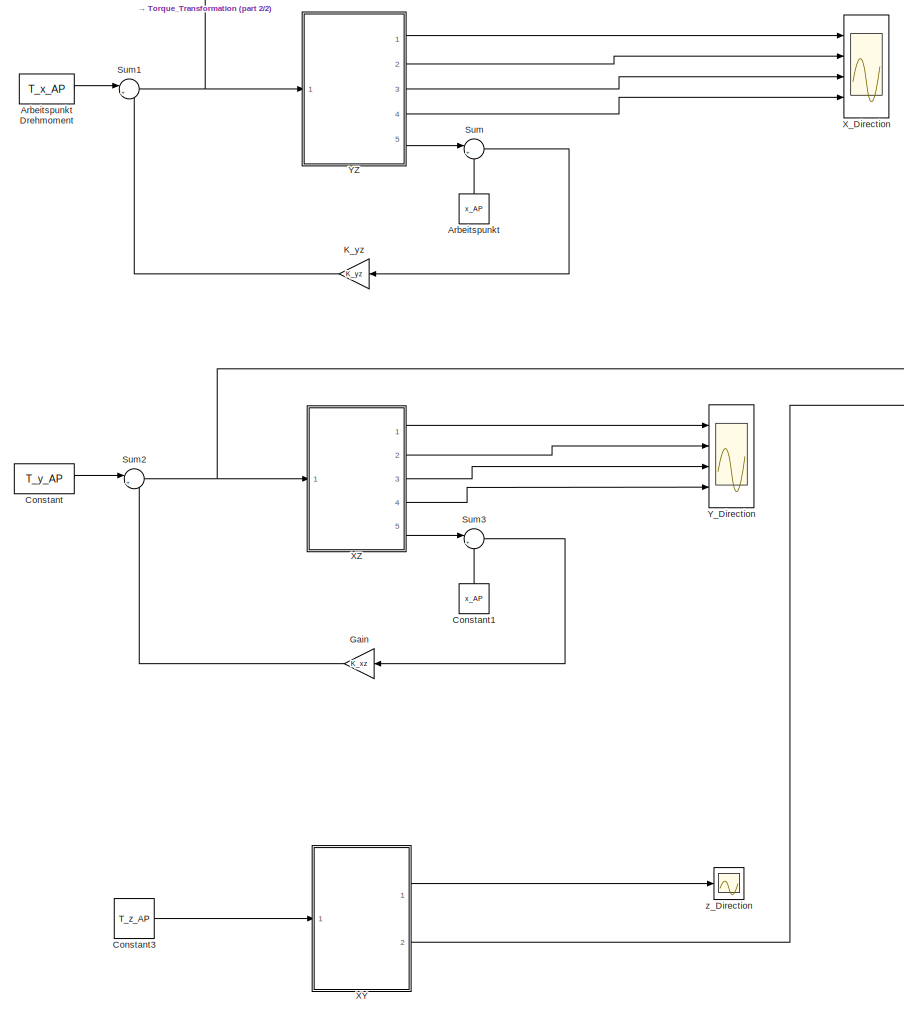
[diagram: root canvas - part 1/2, left side, full height]
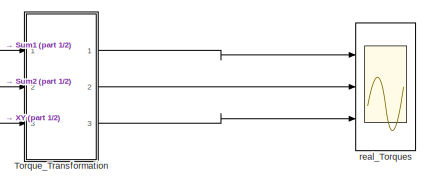
[diagram: root canvas - part 2/2, middle right region]
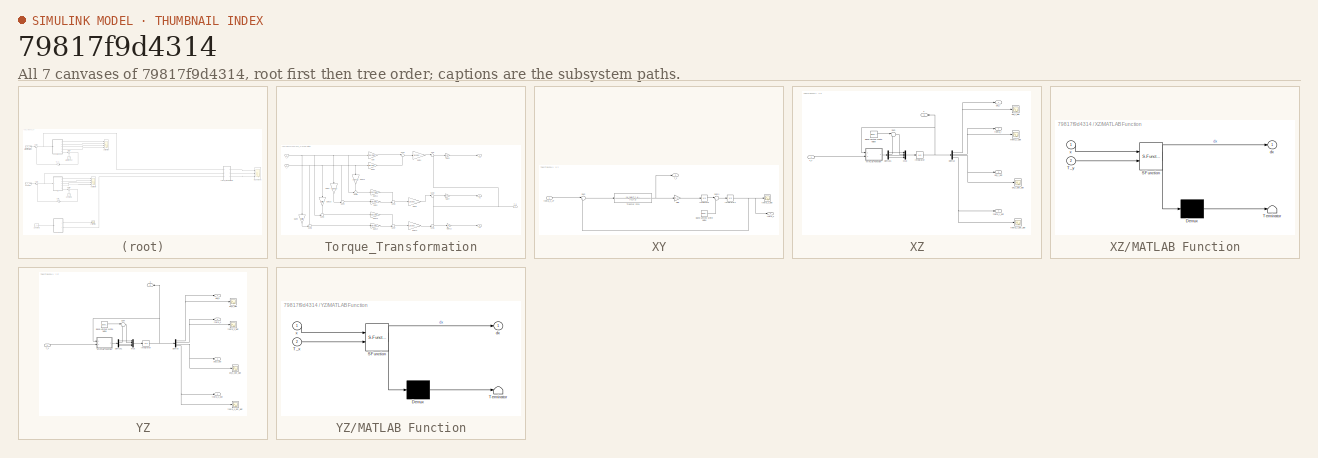
[diagram: thumbnail index - all 7 canvases of the model, root first then tree order]
MODEL slx_79817f9d4314
KIND model
CONFIG AbsTol = auto
CONFIG FixedStep = auto
CONFIG MaxStep = auto
CONFIG MinStep = auto
CONFIG RelTol = 1e-3
CONFIG SampleTimeConstraint = Unconstrained
CONFIG Solver = VariableStepAuto
CONFIG SolverMode = Auto
CONFIG SolverName = VariableStepAuto
CONFIG StartTime = 0.0
CONFIG StopTime = 10.0
BLOCK [Constant] Arbeitspunkt
  Value = x_AP
BLOCK [Constant] Arbeitspunkt Drehmoment
  Value = T_x_AP
BLOCK [Constant] Constant
  Value = T_y_AP
BLOCK [Constant] Constant1
  Value = x_AP
BLOCK [Constant] Constant3
  Value = T_z_AP
BLOCK [Gain] Gain
  Gain = K_xz
  Multiplication = Matrix(K*u) (u vector)
  OutDataTypeStr = Inherit: Inherit via internal rule
  ParamDataTypeStr = Inherit: Inherit via internal rule
  SaturateOnIntegerOverflow = off
BLOCK [Gain] K_yz
  Gain = K_yz
  Multiplication = Matrix(K*u) (u vector)
  OutDataTypeStr = Inherit: Inherit via internal rule
  ParamDataTypeStr = Inherit: Inherit via internal rule
  SaturateOnIntegerOverflow = off
BLOCK [Sum] Sum
  IconShape = round
  InputSameDT = off
  Inputs = |+-
  OutDataTypeStr = Inherit: Inherit via internal rule
  Ports = [2, 1]
  SaturateOnIntegerOverflow = off
BLOCK [Sum] Sum1
  IconShape = round
  InputSameDT = off
  Inputs = |+-
  OutDataTypeStr = Inherit: Inherit via internal rule
  Ports = [2, 1]
  SaturateOnIntegerOverflow = off
BLOCK [Sum] Sum2
  IconShape = round
  InputSameDT = off
  Inputs = |+-
  OutDataTypeStr = Inherit: Inherit via internal rule
  Ports = [2, 1]
  SaturateOnIntegerOverflow = off
BLOCK [Sum] Sum3
  IconShape = round
  InputSameDT = off
  Inputs = |+-
  OutDataTypeStr = Inherit: Inherit via internal rule
  Ports = [2, 1]
  SaturateOnIntegerOverflow = off
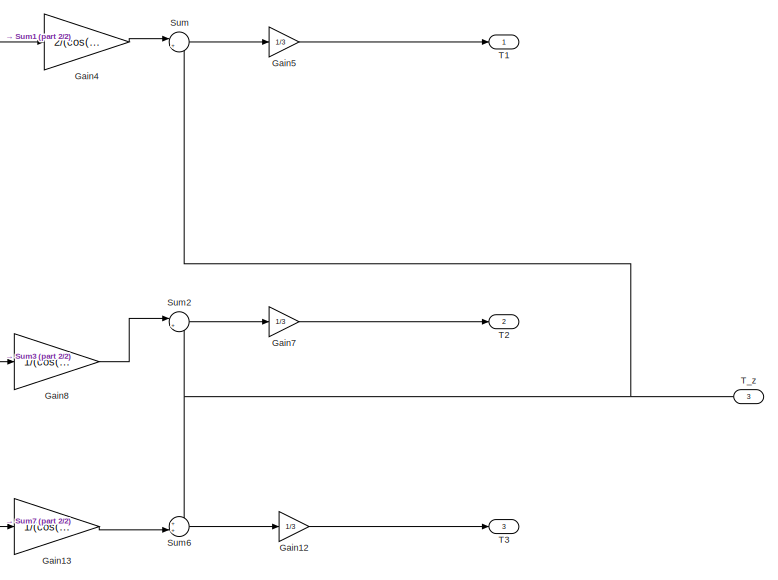
[diagram: Torque_Transformation - part 1/2, right side, full height]
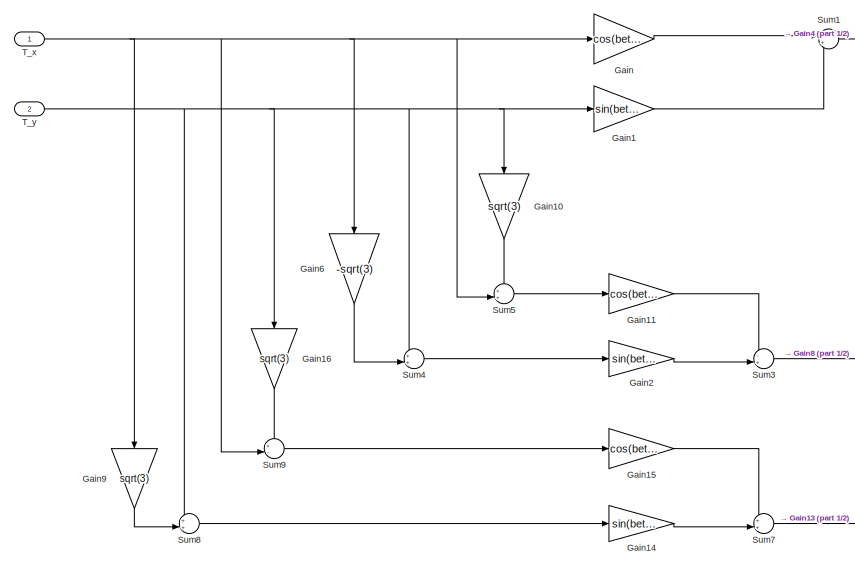
[diagram: Torque_Transformation - part 2/2, left side, full height]
BLOCK [SubSystem] Torque_Transformation
  Ports = [3, 3]
  RequestExecContextInheritance = off
  Variant = off
BLOCK [Gain] Torque_Transformation/Gain
  Gain = cos(beta)
  OutDataTypeStr = Inherit: Inherit via internal rule
  ParamDataTypeStr = Inherit: Inherit via internal rule
  SaturateOnIntegerOverflow = off
BLOCK [Gain] Torque_Transformation/Gain1
  Gain = sin(beta)
  OutDataTypeStr = Inherit: Inherit via internal rule
  ParamDataTypeStr = Inherit: Inherit via internal rule
  SaturateOnIntegerOverflow = off
BLOCK [Gain] Torque_Transformation/Gain10
  Gain = sqrt(3)
  OutDataTypeStr = Inherit: Inherit via internal rule
  ParamDataTypeStr = Inherit: Inherit via internal rule
  SaturateOnIntegerOverflow = off
BLOCK [Gain] Torque_Transformation/Gain11
  Gain = cos(beta)
  OutDataTypeStr = Inherit: Inherit via internal rule
  ParamDataTypeStr = Inherit: Inherit via internal rule
  SaturateOnIntegerOverflow = off
BLOCK [Gain] Torque_Transformation/Gain12
  Gain = 1/3
  OutDataTypeStr = Inherit: Inherit via internal rule
  ParamDataTypeStr = Inherit: Inherit via internal rule
  SaturateOnIntegerOverflow = off
BLOCK [Gain] Torque_Transformation/Gain13
  Gain = 1/(cos(alpha))
  OutDataTypeStr = Inherit: Inherit via internal rule
  ParamDataTypeStr = Inherit: Inherit via internal rule
  SaturateOnIntegerOverflow = off
BLOCK [Gain] Torque_Transformation/Gain14
  Gain = sin(beta)
  OutDataTypeStr = Inherit: Inherit via internal rule
  ParamDataTypeStr = Inherit: Inherit via internal rule
  SaturateOnIntegerOverflow = off
BLOCK [Gain] Torque_Transformation/Gain15
  Gain = cos(beta)
  OutDataTypeStr = Inherit: Inherit via internal rule
  ParamDataTypeStr = Inherit: Inherit via internal rule
  SaturateOnIntegerOverflow = off
BLOCK [Gain] Torque_Transformation/Gain16
  Gain = sqrt(3)
  OutDataTypeStr = Inherit: Inherit via internal rule
  ParamDataTypeStr = Inherit: Inherit via internal rule
  SaturateOnIntegerOverflow = off
BLOCK [Gain] Torque_Transformation/Gain2
  Gain = sin(beta)
  OutDataTypeStr = Inherit: Inherit via internal rule
  ParamDataTypeStr = Inherit: Inherit via internal rule
  SaturateOnIntegerOverflow = off
BLOCK [Gain] Torque_Transformation/Gain4
  Gain = 2/(cos(alpha))
  OutDataTypeStr = Inherit: Inherit via internal rule
  ParamDataTypeStr = Inherit: Inherit via internal rule
  SaturateOnIntegerOverflow = off
BLOCK [Gain] Torque_Transformation/Gain5
  Gain = 1/3
  OutDataTypeStr = Inherit: Inherit via internal rule
  ParamDataTypeStr = Inherit: Inherit via internal rule
  SaturateOnIntegerOverflow = off
BLOCK [Gain] Torque_Transformation/Gain6
  Gain = -sqrt(3)
  OutDataTypeStr = Inherit: Inherit via internal rule
  ParamDataTypeStr = Inherit: Inherit via internal rule
  SaturateOnIntegerOverflow = off
BLOCK [Gain] Torque_Transformation/Gain7
  Gain = 1/3
  OutDataTypeStr = Inherit: Inherit via internal rule
  ParamDataTypeStr = Inherit: Inherit via internal rule
  SaturateOnIntegerOverflow = off
BLOCK [Gain] Torque_Transformation/Gain8
  Gain = 1/(cos(alpha))
  OutDataTypeStr = Inherit: Inherit via internal rule
  ParamDataTypeStr = Inherit: Inherit via internal rule
  SaturateOnIntegerOverflow = off
BLOCK [Gain] Torque_Transformation/Gain9
  Gain = sqrt(3)
  OutDataTypeStr = Inherit: Inherit via internal rule
  ParamDataTypeStr = Inherit: Inherit via internal rule
  SaturateOnIntegerOverflow = off
BLOCK [Sum] Torque_Transformation/Sum
  IconShape = round
  InputSameDT = off
  Inputs = |++
  OutDataTypeStr = Inherit: Inherit via internal rule
  Ports = [2, 1]
  SaturateOnIntegerOverflow = off
BLOCK [Sum] Torque_Transformation/Sum1
  IconShape = round
  InputSameDT = off
  Inputs = |+-
  OutDataTypeStr = Inherit: Inherit via internal rule
  Ports = [2, 1]
  SaturateOnIntegerOverflow = off
BLOCK [Sum] Torque_Transformation/Sum2
  IconShape = round
  InputSameDT = off
  Inputs = |++
  OutDataTypeStr = Inherit: Inherit via internal rule
  Ports = [2, 1]
  SaturateOnIntegerOverflow = off
BLOCK [Sum] Torque_Transformation/Sum3
  IconShape = round
  InputSameDT = off
  Inputs = -+|
  OutDataTypeStr = Inherit: Inherit via internal rule
  Ports = [2, 1]
  SaturateOnIntegerOverflow = off
BLOCK [Sum] Torque_Transformation/Sum4
  IconShape = round
  InputSameDT = off
  Inputs = ++|
  OutDataTypeStr = Inherit: Inherit via internal rule
  Ports = [2, 1]
  SaturateOnIntegerOverflow = off
BLOCK [Sum] Torque_Transformation/Sum5
  IconShape = round
  InputSameDT = off
  Inputs = ++|
  OutDataTypeStr = Inherit: Inherit via internal rule
  Ports = [2, 1]
  SaturateOnIntegerOverflow = off
BLOCK [Sum] Torque_Transformation/Sum6
  IconShape = round
  InputSameDT = off
  Inputs = ++|
  OutDataTypeStr = Inherit: Inherit via internal rule
  Ports = [2, 1]
  SaturateOnIntegerOverflow = off
BLOCK [Sum] Torque_Transformation/Sum7
  IconShape = round
  InputSameDT = off
  Inputs = ++|
  OutDataTypeStr = Inherit: Inherit via internal rule
  Ports = [2, 1]
  SaturateOnIntegerOverflow = off
BLOCK [Sum] Torque_Transformation/Sum8
  IconShape = round
  InputSameDT = off
  Inputs = ++|
  OutDataTypeStr = Inherit: Inherit via internal rule
  Ports = [2, 1]
  SaturateOnIntegerOverflow = off
BLOCK [Sum] Torque_Transformation/Sum9
  IconShape = round
  InputSameDT = off
  Inputs = +-|
  OutDataTypeStr = Inherit: Inherit via internal rule
  Ports = [2, 1]
  SaturateOnIntegerOverflow = off
BLOCK [Outport] Torque_Transformation/T1
  IconDisplay = Port number
BLOCK [Outport] Torque_Transformation/T2
  IconDisplay = Port number
  Port = 2
BLOCK [Outport] Torque_Transformation/T3
  IconDisplay = Port number
  Port = 3
BLOCK [Inport] Torque_Transformation/T_x
  IconDisplay = Port number
BLOCK [Inport] Torque_Transformation/T_y
  IconDisplay = Port number
  Port = 2
BLOCK [Inport] Torque_Transformation/T_z
  IconDisplay = Port number
  Port = 3
BLOCK [SubSystem] XY
  Ports = [1, 2]
  RequestExecContextInheritance = off
  Variant = off
BLOCK [Reference] XY/Band-Limited White Noise  REF=simulink/Sources/Band-Limited
White Noise
  Ports = [0, 1]
  SourceBlock = simulink/Sources/Band-Limited\nWhite Noise
  SourceType = Band-Limited White Noise.
BLOCK [Gain] XY/Gain
  Gain = k_s
  OutDataTypeStr = Inherit: Inherit via internal rule
  ParamDataTypeStr = Inherit: Inherit via internal rule
  SaturateOnIntegerOverflow = off
BLOCK [Integrator] XY/Integrator
  Ports = [1, 1]
BLOCK [Integrator] XY/Integrator1
  InitialCondition = pi/32
  Ports = [1, 1]
BLOCK [Sum] XY/Sum
  IconShape = round
  InputSameDT = off
  Inputs = |+-
  OutDataTypeStr = Inherit: Inherit via internal rule
  Ports = [2, 1]
  SaturateOnIntegerOverflow = off
BLOCK [Sum] XY/Sum1
  IconShape = round
  InputSameDT = off
  Inputs = |++
  OutDataTypeStr = Inherit: Inherit via internal rule
  Ports = [2, 1]
  SaturateOnIntegerOverflow = off
BLOCK [Outport] XY/T_z
  IconDisplay = Port number
  Port = 2
BLOCK [TransferFcn] XY/Transfer Fcn1
  Denominator = [T_n 1]
  Numerator = [k_reg*T_r  k_reg]
BLOCK [Outport] XY/theta_z 
  IconDisplay = Port number
BLOCK [Inport] XY/theta_z_AP 
  IconDisplay = Port number
BLOCK [Scope] XY/theta_z_plot
  Ports = [1]
  ScopeSpecificationString = C++SS(StrPVP('SaveName','ScopeData8'))
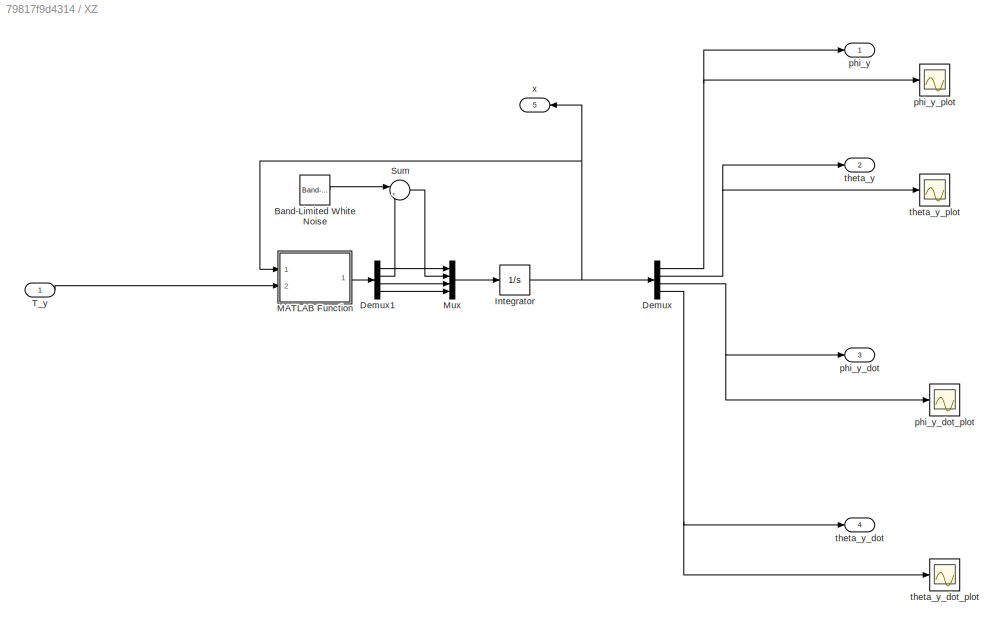
BLOCK [SubSystem] XZ
  Ports = [1, 5]
  RequestExecContextInheritance = off
  Variant = off
BLOCK [Reference] XZ/Band-Limited White Noise  REF=simulink/Sources/Band-Limited
White Noise
  Ports = [0, 1]
  SourceBlock = simulink/Sources/Band-Limited\nWhite Noise
  SourceType = Band-Limited White Noise.
BLOCK [Demux] XZ/Demux
  DisplayOption = bar
  Ports = [1, 4]
BLOCK [Demux] XZ/Demux1
  DisplayOption = bar
  Ports = [1, 4]
BLOCK [Integrator] XZ/Integrator
  InitialCondition = [0 pi/32  0 0]
  Ports = [1, 1]
BLOCK [SubSystem] XZ/MATLAB Function
  ErrorFcn = Stateflow.Translate.translate
  PermitHierarchicalResolution = ExplicitOnly
  Ports = [2, 1]
  RequestExecContextInheritance = off
  SFBlockType = MATLAB Function
  TreatAsAtomicUnit = on
  Variant = off
BLOCK [Demux] XZ/MATLAB Function/ Demux 
  Outputs = 1
  Ports = [1, 1]
BLOCK [S-Function] XZ/MATLAB Function/ SFunction 
  EnableBusSupport = on
  FunctionName = sf_sfun
  PortCounts = [2 2]
  Ports = [2, 2]
  SFunctionDeploymentMode = off
  Tag = Stateflow S-Function Planar_Full_NL_Subsystems 1
BLOCK [Terminator] XZ/MATLAB Function/ Terminator 
BLOCK [Inport] XZ/MATLAB Function/T_y
  IconDisplay = Port number
  Port = 2
BLOCK [Outport] XZ/MATLAB Function/dx
  IconDisplay = Port number
BLOCK [Inport] XZ/MATLAB Function/x
  IconDisplay = Port number
BLOCK [Mux] XZ/Mux
  DisplayOption = bar
  Ports = [4, 1]
BLOCK [Sum] XZ/Sum
  IconShape = round
  InputSameDT = off
  Inputs = |++
  OutDataTypeStr = Inherit: Inherit via internal rule
  Ports = [2, 1]
  SaturateOnIntegerOverflow = off
BLOCK [Inport] XZ/T_y 
  IconDisplay = Port number
BLOCK [Outport] XZ/phi_y
  IconDisplay = Port number
BLOCK [Outport] XZ/phi_y_dot
  IconDisplay = Port number
  Port = 3
BLOCK [Scope] XZ/phi_y_dot_plot
  Ports = [1]
  ScopeSpecificationString = C++SS(StrPVP('SaveName','ScopeData1'),StrPVP('LimitDataPoints','on'),StrPVP('DataFormat','Array'),StrPVP('Decimation','1'),StrPVP('BlockParamSampleInput','off'),StrPVP('SaveName','ScopeData4'))
BLOCK [Scope] XZ/phi_y_plot
  Ports = [1]
  ScopeSpecificationString = C++SS(StrPVP('SaveName','ScopeData2'),StrPVP('LimitDataPoints','on'),StrPVP('DataFormat','Array'),StrPVP('Decimation','1'),StrPVP('BlockParamSampleInput','off'),StrPVP('SaveName','ScopeData5'))
BLOCK [Outport] XZ/theta_y
  IconDisplay = Port number
  Port = 2
BLOCK [Outport] XZ/theta_y_dot
  IconDisplay = Port number
  Port = 4
BLOCK [Scope] XZ/theta_y_dot_plot
  Ports = [1]
  ScopeSpecificationString = C++SS(StrPVP('SaveName','ScopeData3'),StrPVP('LimitDataPoints','on'),StrPVP('DataFormat','Array'),StrPVP('Decimation','1'),StrPVP('BlockParamSampleInput','off'),StrPVP('SaveName','ScopeData6'))
BLOCK [Scope] XZ/theta_y_plot
  Ports = [1]
  ScopeSpecificationString = C++SS(StrPVP('SaveName','ScopeData'),StrPVP('LimitDataPoints','on'),StrPVP('DataFormat','Array'),StrPVP('Decimation','1'),StrPVP('BlockParamSampleInput','off'),StrPVP('SaveName','ScopeData7'))
BLOCK [Outport] XZ/x
  IconDisplay = Port number
  Port = 5
BLOCK [Scope] X_Direction
  NumInputPorts = 4
  Ports = [4]
  ScopeSpecificationString = Simulink.scopes.TimeScopeBlockCfg('CurrentConfiguration', extmgr.ConfigurationSet(extmgr.Configuration('Core','General UI',true),extmgr.Configuration('Core','Source UI',true),extmgr.Configuration('Sources','WiredSimulink',true,'DataLoggingVariableName','ScopeData9'),extmgr.Configuration('Visuals','Time Domain',true,'SerializedDisplays',{struct('MinYLimReal','-2.26532','MaxYLimReal','2.23093','YLab...<+3357ch>
BLOCK [SubSystem] YZ
  Ports = [1, 5]
  RequestExecContextInheritance = off
  Variant = off
BLOCK [Reference] YZ/Band-Limited White Noise  REF=simulink/Sources/Band-Limited
White Noise
  Ports = [0, 1]
  SourceBlock = simulink/Sources/Band-Limited\nWhite Noise
  SourceType = Band-Limited White Noise.
BLOCK [Demux] YZ/Demux
  DisplayOption = bar
  Ports = [1, 4]
BLOCK [Demux] YZ/Demux1
  DisplayOption = bar
  Ports = [1, 4]
BLOCK [Integrator] YZ/Integrator
  InitialCondition = [0 pi/32 0 0]
  Ports = [1, 1]
BLOCK [SubSystem] YZ/MATLAB Function
  ErrorFcn = Stateflow.Translate.translate
  PermitHierarchicalResolution = ExplicitOnly
  Ports = [2, 1]
  RequestExecContextInheritance = off
  SFBlockType = MATLAB Function
  TreatAsAtomicUnit = on
  Variant = off
BLOCK [Demux] YZ/MATLAB Function/ Demux 
  Outputs = 1
  Ports = [1, 1]
BLOCK [S-Function] YZ/MATLAB Function/ SFunction 
  EnableBusSupport = on
  FunctionName = sf_sfun
  PortCounts = [2 2]
  Ports = [2, 2]
  SFunctionDeploymentMode = off
  Tag = Stateflow S-Function Planar_Full_NL_Subsystems 2
BLOCK [Terminator] YZ/MATLAB Function/ Terminator 
BLOCK [Inport] YZ/MATLAB Function/T_x
  IconDisplay = Port number
  Port = 2
BLOCK [Outport] YZ/MATLAB Function/dx
  IconDisplay = Port number
BLOCK [Inport] YZ/MATLAB Function/x
  IconDisplay = Port number
BLOCK [Mux] YZ/Mux
  DisplayOption = bar
  Ports = [4, 1]
BLOCK [Sum] YZ/Sum
  IconShape = round
  InputSameDT = off
  Inputs = |++
  OutDataTypeStr = Inherit: Inherit via internal rule
  Ports = [2, 1]
  SaturateOnIntegerOverflow = off
BLOCK [Inport] YZ/T_x 
  IconDisplay = Port number
BLOCK [Outport] YZ/phi_x
  IconDisplay = Port number
BLOCK [Outport] YZ/phi_x_dot
  IconDisplay = Port number
  Port = 3
BLOCK [Scope] YZ/phi_x_dot_plot
  Ports = [1]
  ScopeSpecificationString = C++SS(StrPVP('SaveName','ScopeData1'))
BLOCK [Scope] YZ/phi_x_plot
  Ports = [1]
  ScopeSpecificationString = C++SS(StrPVP('SaveName','ScopeData2'))
BLOCK [Outport] YZ/theta_x
  IconDisplay = Port number
  Port = 2
BLOCK [Outport] YZ/theta_x_dot
  IconDisplay = Port number
  Port = 4
BLOCK [Scope] YZ/theta_x_dot_plot
  Ports = [1]
  ScopeSpecificationString = C++SS(StrPVP('SaveName','ScopeData3'))
BLOCK [Scope] YZ/theta_x_plot
  Ports = [1]
  ScopeSpecificationString = C++SS(StrPVP('SaveName','ScopeData'))
BLOCK [Outport] YZ/x
  IconDisplay = Port number
  Port = 5
BLOCK [Scope] Y_Direction
  NumInputPorts = 4
  Ports = [4]
  ScopeSpecificationString = Simulink.scopes.TimeScopeBlockCfg('CurrentConfiguration', extmgr.ConfigurationSet(extmgr.Configuration('Core','General UI',true),extmgr.Configuration('Core','Source UI',true),extmgr.Configuration('Sources','WiredSimulink',true,'DataLoggingVariableName','ScopeData10'),extmgr.Configuration('Visuals','Time Domain',true,'SerializedDisplays',{struct('MinYLimReal','-10','MaxYLimReal','10','YLabelReal','...<+3478ch>
BLOCK [Scope] real_Torques
  NumInputPorts = 3
  Ports = [3]
  ScopeSpecificationString = Simulink.scopes.TimeScopeBlockCfg('CurrentConfiguration', extmgr.ConfigurationSet(extmgr.Configuration('Core','General UI',true),extmgr.Configuration('Core','Source UI',true),extmgr.Configuration('Sources','WiredSimulink',true,'DataLoggingVariableName','ScopeData12'),extmgr.Configuration('Visuals','Time Domain',true,'SerializedDisplays',{struct('MinYLimReal','-2.55617','MaxYLimReal','3.07893','YLa...<+2724ch>
BLOCK [Scope] z_Direction
  Ports = [1]
  ScopeSpecificationString = C++SS(StrPVP('SaveName','ScopeData11'))
LINE Arbeitspunkt Drehmoment:1 -> Sum1:1
LINE Arbeitspunkt:1 -> Sum:2
LINE Constant1:1 -> Sum3:2
LINE Constant3:1 -> XY:1
LINE Constant:1 -> Sum2:1
LINE Gain:1 -> Sum2:2
LINE K_yz:1 -> Sum1:2
NET Sum1:1 -> Torque_Transformation:1, YZ:1
NET Sum2:1 -> Torque_Transformation:2, XZ:1
LINE Sum3:1 -> Gain:1
LINE Sum:1 -> K_yz:1
LINE Torque_Transformation/Gain10:1 -> Torque_Transformation/Sum5:1
LINE Torque_Transformation/Gain11:1 -> Torque_Transformation/Sum3:1
LINE Torque_Transformation/Gain12:1 -> Torque_Transformation/T3:1
LINE Torque_Transformation/Gain13:1 -> Torque_Transformation/Sum6:2
LINE Torque_Transformation/Gain14:1 -> Torque_Transformation/Sum7:2
LINE Torque_Transformation/Gain15:1 -> Torque_Transformation/Sum7:1
LINE Torque_Transformation/Gain16:1 -> Torque_Transformation/Sum9:1
LINE Torque_Transformation/Gain1:1 -> Torque_Transformation/Sum1:2
LINE Torque_Transformation/Gain2:1 -> Torque_Transformation/Sum3:2
LINE Torque_Transformation/Gain4:1 -> Torque_Transformation/Sum:1
LINE Torque_Transformation/Gain5:1 -> Torque_Transformation/T1:1
LINE Torque_Transformation/Gain6:1 -> Torque_Transformation/Sum4:2
LINE Torque_Transformation/Gain7:1 -> Torque_Transformation/T2:1
LINE Torque_Transformation/Gain8:1 -> Torque_Transformation/Sum2:1
LINE Torque_Transformation/Gain9:1 -> Torque_Transformation/Sum8:2
LINE Torque_Transformation/Gain:1 -> Torque_Transformation/Sum1:1
LINE Torque_Transformation/Sum1:1 -> Torque_Transformation/Gain4:1
LINE Torque_Transformation/Sum2:1 -> Torque_Transformation/Gain7:1
LINE Torque_Transformation/Sum3:1 -> Torque_Transformation/Gain8:1
LINE Torque_Transformation/Sum4:1 -> Torque_Transformation/Gain2:1
LINE Torque_Transformation/Sum5:1 -> Torque_Transformation/Gain11:1
LINE Torque_Transformation/Sum6:1 -> Torque_Transformation/Gain12:1
LINE Torque_Transformation/Sum7:1 -> Torque_Transformation/Gain13:1
LINE Torque_Transformation/Sum8:1 -> Torque_Transformation/Gain14:1
LINE Torque_Transformation/Sum9:1 -> Torque_Transformation/Gain15:1
LINE Torque_Transformation/Sum:1 -> Torque_Transformation/Gain5:1
NET Torque_Transformation/T_x:1 -> Torque_Transformation/Gain6:1, Torque_Transformation/Gain9:1, Torque_Transformation/Gain:1, Torque_Transformation/Sum5:2, Torque_Transformation/Sum9:2
NET Torque_Transformation/T_y:1 -> Torque_Transformation/Gain10:1, Torque_Transformation/Gain16:1, Torque_Transformation/Gain1:1, Torque_Transformation/Sum4:1, Torque_Transformation/Sum8:1
NET Torque_Transformation/T_z:1 -> Torque_Transformation/Sum2:2, Torque_Transformation/Sum6:1, Torque_Transformation/Sum:2
LINE Torque_Transformation:1 -> real_Torques:1
LINE Torque_Transformation:2 -> real_Torques:2
LINE Torque_Transformation:3 -> real_Torques:3
LINE XY/Band-Limited White Noise:1 -> XY/Sum1:2
LINE XY/Gain:1 -> XY/Integrator:1
NET XY/Integrator1:1 -> XY/Sum:2, XY/theta_z :1, XY/theta_z_plot:1
LINE XY/Integrator:1 -> XY/Sum1:1
LINE XY/Sum1:1 -> XY/Integrator1:1
LINE XY/Sum:1 -> XY/Transfer Fcn1:1
NET XY/Transfer Fcn1:1 -> XY/Gain:1, XY/T_z:1
LINE XY/theta_z_AP :1 -> XY/Sum:1
LINE XY:1 -> z_Direction:1
LINE XY:2 -> Torque_Transformation:3
LINE XZ/Band-Limited White Noise:1 -> XZ/Sum:1
LINE XZ/Demux1:1 -> XZ/Mux:1
LINE XZ/Demux1:2 -> XZ/Sum:2
LINE XZ/Demux1:3 -> XZ/Mux:3
LINE XZ/Demux1:4 -> XZ/Mux:4
NET XZ/Demux:1 -> XZ/phi_y:1, XZ/phi_y_plot:1
NET XZ/Demux:2 -> XZ/theta_y:1, XZ/theta_y_plot:1
NET XZ/Demux:3 -> XZ/phi_y_dot:1, XZ/phi_y_dot_plot:1
NET XZ/Demux:4 -> XZ/theta_y_dot:1, XZ/theta_y_dot_plot:1
NET XZ/Integrator:1 -> XZ/Demux:1, XZ/MATLAB Function:1, XZ/x:1
LINE XZ/MATLAB Function:1 -> XZ/Demux1:1
LINE XZ/Mux:1 -> XZ/Integrator:1
LINE XZ/Sum:1 -> XZ/Mux:2
LINE XZ/T_y :1 -> XZ/MATLAB Function:2
LINE XZ:1 -> Y_Direction:1
LINE XZ:2 -> Y_Direction:2
LINE XZ:3 -> Y_Direction:3
LINE XZ:4 -> Y_Direction:4
LINE XZ:5 -> Sum3:1
LINE YZ/Band-Limited White Noise:1 -> YZ/Sum:1
LINE YZ/Demux1:1 -> YZ/Mux:1
LINE YZ/Demux1:2 -> YZ/Sum:2
LINE YZ/Demux1:3 -> YZ/Mux:3
LINE YZ/Demux1:4 -> YZ/Mux:4
NET YZ/Demux:1 -> YZ/phi_x:1, YZ/phi_x_plot:1
NET YZ/Demux:2 -> YZ/theta_x:1, YZ/theta_x_plot:1
NET YZ/Demux:3 -> YZ/phi_x_dot:1, YZ/phi_x_dot_plot:1
NET YZ/Demux:4 -> YZ/theta_x_dot:1, YZ/theta_x_dot_plot:1
NET YZ/Integrator:1 -> YZ/Demux:1, YZ/MATLAB Function:1, YZ/x:1
LINE YZ/MATLAB Function:1 -> YZ/Demux1:1
LINE YZ/Mux:1 -> YZ/Integrator:1
LINE YZ/Sum:1 -> YZ/Mux:2
LINE YZ/T_x :1 -> YZ/MATLAB Function:2
LINE YZ:1 -> X_Direction:1
LINE YZ:2 -> X_Direction:2
LINE YZ:3 -> X_Direction:3
LINE YZ:4 -> X_Direction:4
LINE YZ:5 -> Sum:1
note: NET lines group one-source signal fan-out (src -> all destinations, sorted); 1:1 wires keep LINE
CHART XZ/MATLAB Function states=1 transitions=1
  STATE_LABEL 'eML_blk_kernel()'
  STATE_LABEL 'SCRIPT:\nfunction dx = fcn_xz(x,T_y)\n\n%Zuweisung Koordinaten und Ableitungen\nphi_y =x(1);\ntheta_y=x(2);\nphi_y_dot=x(3);\ntheta_y_dot=x(4);\n\nphi_y_dotdot =(0.0355556*(1.65925e33*sin(theta_y)*theta_y_dot^2 + 5.804e34*T_y + 1.26585e35*sin(theta_y) - 8.4019e33*cos(theta_y)*sin(theta_y) + 4.60272e33*T_y*cos(theta_y)))/(6.42314e31*cos(theta_y) - 2.13164e30*cos(theta_y)^2 + 1.63981e32);\n\ntheta_y_dotdot = (...<+328ch>'
CHART YZ/MATLAB Function states=1 transitions=1
  STATE_LABEL 'eML_blk_kernel()'
  STATE_LABEL 'SCRIPT:\nfunction dx = fcn(x,T_x)\n\n%Zuweisung Koordinaten und Ableitungen\nphi_x =x(1);\ntheta_x=x(2);\nphi_x_dot=x(3);\ntheta_x_dot=x(4);\n\nphi_x_dotdot = (0.0355556*(1.65925e33*sin(theta_x)*theta_x_dot^2 + 5.804e34*T_x + 1.26585e35*sin(theta_x) - 8.4019e33*cos(theta_x)*sin(theta_x) + 4.60272e33*T_x*cos(theta_x)))/(6.42314e31*cos(theta_x) - 2.13164e30*cos(theta_x)^2 + 1.63981e32);\n\ntheta_x_dotdot = (0....<+326ch>'
